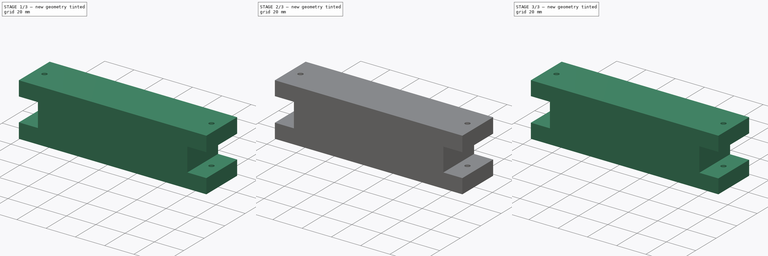
[diagram: build sequence overview — one tinted view per stage of 3, left to right]
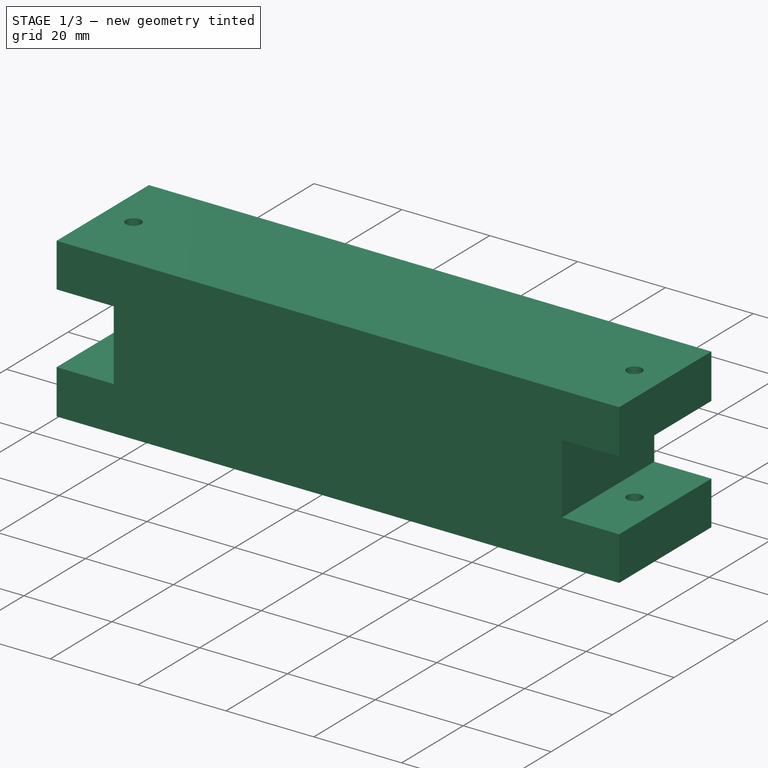
[diagram: stage 1 of 3 — iso view after this stage's code; geometry added in this stage tinted green]
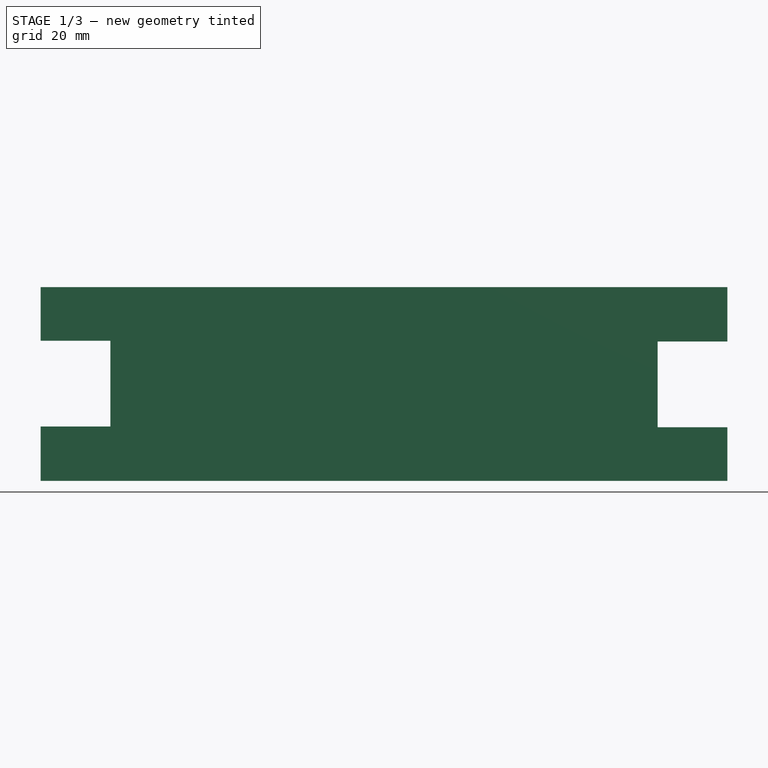
[diagram: stage 1 of 3 — front view after this stage's code; geometry added in this stage tinted green]
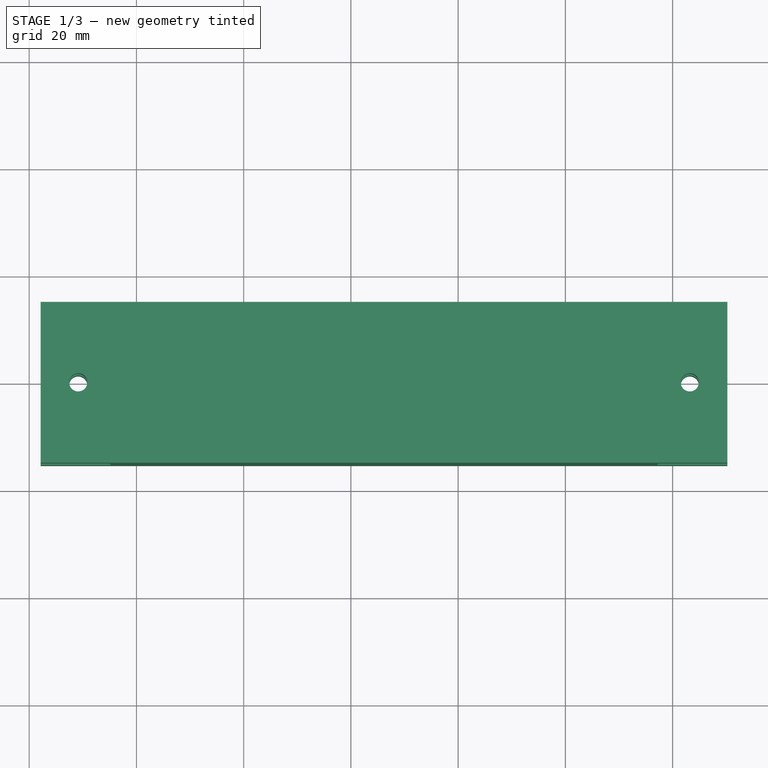
[diagram: stage 1 of 3 — top view after this stage's code; geometry added in this stage tinted green]
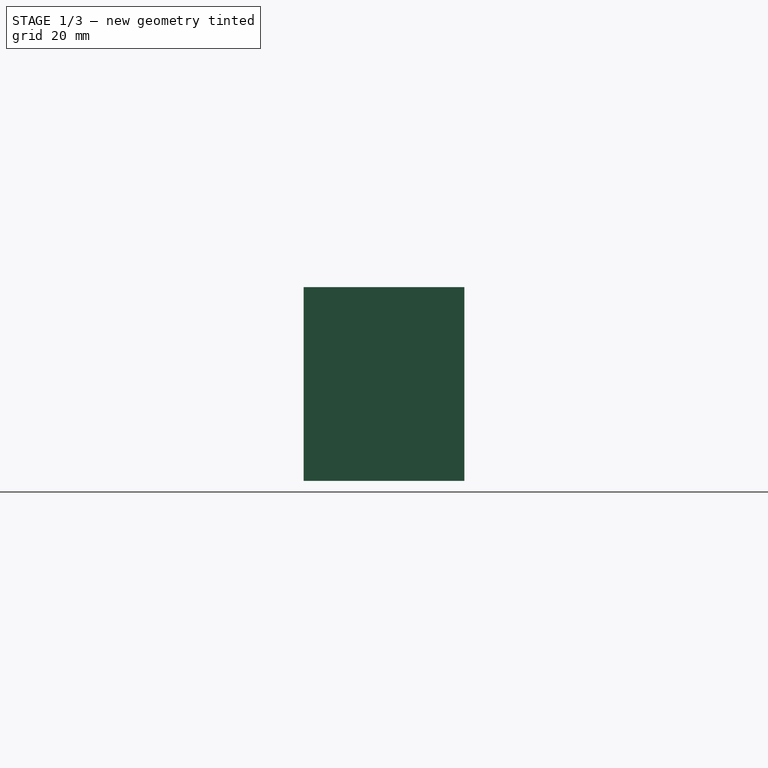
[diagram: stage 1 of 3 — right view after this stage's code; geometry added in this stage tinted green]
FCSTD DOCUMENT  (FreeCAD 0.21R33668 +26 (Git))
Label: Rear_Top_Connector
License: All rights reserved
LicenseURL: http://en.wikipedia.org/wiki/All_rights_reserved
objects: PartDesign::Pocket×6, Sketcher::SketchObject×3, PartDesign::Pad×1, PartDesign::Body×1
note: 18 computed .brp shape members not serialized (recipe doc carries the construction recipe); baked Part::Feature solids carry a one-line shape summary decoded from their .brp

FEATURE [Sketcher::SketchObject] Sketch
  AttachmentOffset = pos=(0,0,-204.7) rot=(0,0,1;0rad)
  FullyConstrained = false
  MapMode = 5
  Placement = pos=(0,204.7,4.55e-14) rot=(1,0,0;1.5708rad)
  Support = -> [XZ_Plane001]
  sketch-geometry (12):
    g0: LineSegment StartX=442.141 StartY=170.606 StartZ=0 EndX=570.2 EndY=170.606 EndZ=0
    g1: LineSegment StartX=570.201 StartY=134.454 StartZ=0 EndX=442.14 EndY=134.454 EndZ=0
    g2: LineSegment StartX=570.2 StartY=170.606 StartZ=0 EndX=570.2 EndY=160.446 EndZ=0
    g3: LineSegment StartX=570.2 StartY=160.446 StartZ=0 EndX=557.195 EndY=160.446 EndZ=0
    g4: LineSegment StartX=557.195 StartY=160.446 StartZ=0 EndX=557.195 EndY=144.454 EndZ=0
    g5: LineSegment StartX=557.195 StartY=144.454 StartZ=0 EndX=570.201 EndY=144.454 EndZ=0
    g6: LineSegment StartX=570.201 StartY=144.454 StartZ=0 EndX=570.201 EndY=134.454 EndZ=0
    g7: LineSegment StartX=442.141 StartY=170.606 StartZ=0 EndX=442.141 EndY=160.6 EndZ=0
    g8: LineSegment StartX=442.141 StartY=160.6 StartZ=0 EndX=455.14 EndY=160.6 EndZ=0
    g9: LineSegment StartX=455.14 StartY=160.6 StartZ=0 EndX=455.14 EndY=144.602 EndZ=0
    g10: LineSegment StartX=455.14 StartY=144.602 StartZ=0 EndX=442.14 EndY=144.602 EndZ=0
    g11: LineSegment StartX=442.14 StartY=144.602 StartZ=0 EndX=442.14 EndY=134.454 EndZ=0
  constraints (24):
    c: Horizontal(g0)
    c: Horizontal(g1)
    c: Coincident(g0,g2)
    c: Vertical(g2)
    c: Coincident(g2,g3)
    c: Horizontal(g3)
    c: Coincident(g3,g4)
    c: Vertical(g4)
    c: Coincident(g4,g5)
    c: Horizontal(g5)
    c: Coincident(g5,g6)
    c: Coincident(g6,g1)
    c: Vertical(g6)
    c: Coincident(g0,g7)
    c: Vertical(g7)
    c: Coincident(g7,g8)
    c: Horizontal(g8)
    c: Coincident(g8,g9)
    c: Vertical(g9)
    c: Coincident(g9,g10)
    c: Horizontal(g10)
    c: Coincident(g10,g11)
    c: Coincident(g11,g1)
    c: Vertical(g11)
FEATURE [PartDesign::Pad] Pad
  Direction = (0,-1,2e-16)
  Length = 30
  Length2 = 10
  Placement = pos=(0,0,0) rot=(1,0,0;1.5708rad)
  Profile = -> Sketch
  ReferenceAxis = -> Sketch [N_Axis]
  Reversed = true
  Type = 0
FEATURE [Sketcher::SketchObject] Sketch001
  AttachmentOffset = pos=(0,0,33) rot=(0,0,1;0rad)
  FullyConstrained = false
  MapMode = 5
  Placement = pos=(0,0,33) rot=(0,0,1;0rad)
  Support = -> [XY_Plane001]
  sketch-geometry (2):
    g0: Circle CenterX=449.144 CenterY=219.698 CenterZ=0 NormalX=0 NormalY=0 NormalZ=1 AngleXU=0 Radius=1.69878
    g1: Circle CenterX=563.197 CenterY=219.697 CenterZ=0 NormalX=0 NormalY=0 NormalZ=1 AngleXU=0 Radius=1.69728
FEATURE [PartDesign::Pocket] Pocket
  BaseFeature = -> Pad
  Direction = (0,0,-1)
  Length = 5
  Length2 = 5
  Placement = pos=(0,0,0) rot=(1,0,0;1.5708rad)
  Profile = -> Sketch001
  ReferenceAxis = -> Sketch001 [N_Axis]
  Reversed = true
  Type = 1
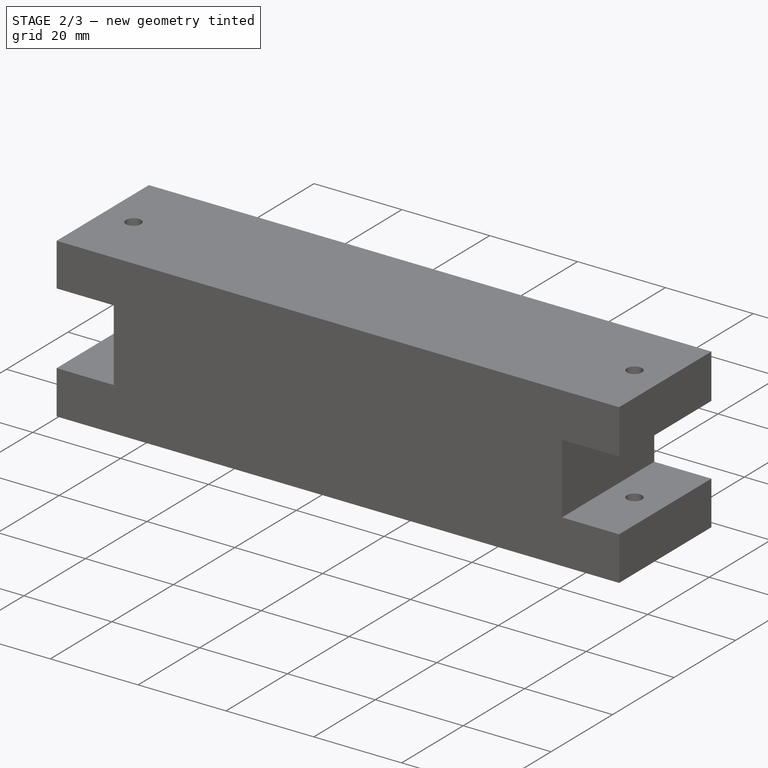
[diagram: stage 2 of 3 — iso view after this stage's code; geometry added in this stage tinted green]
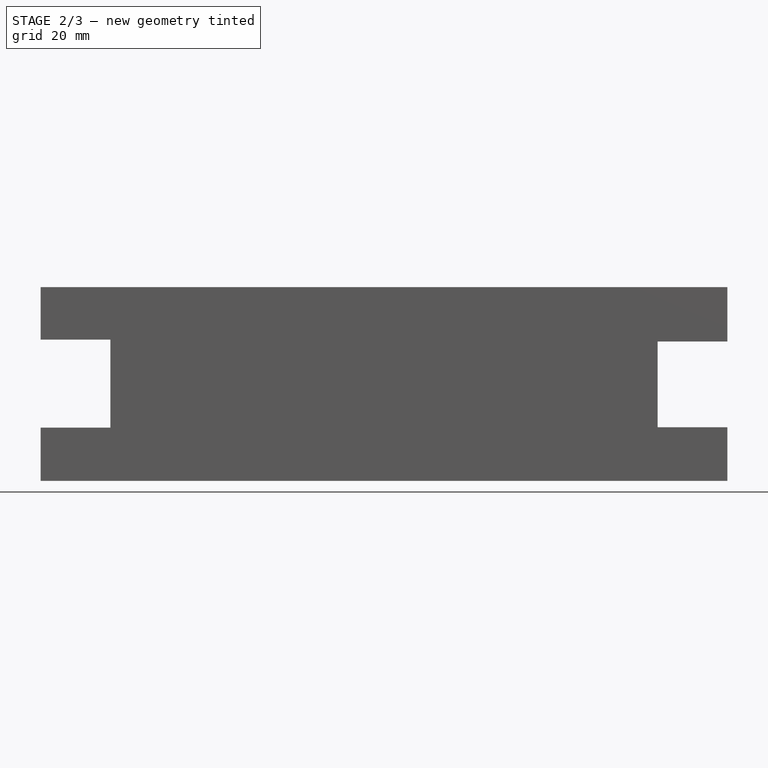
[diagram: stage 2 of 3 — front view after this stage's code; geometry added in this stage tinted green]
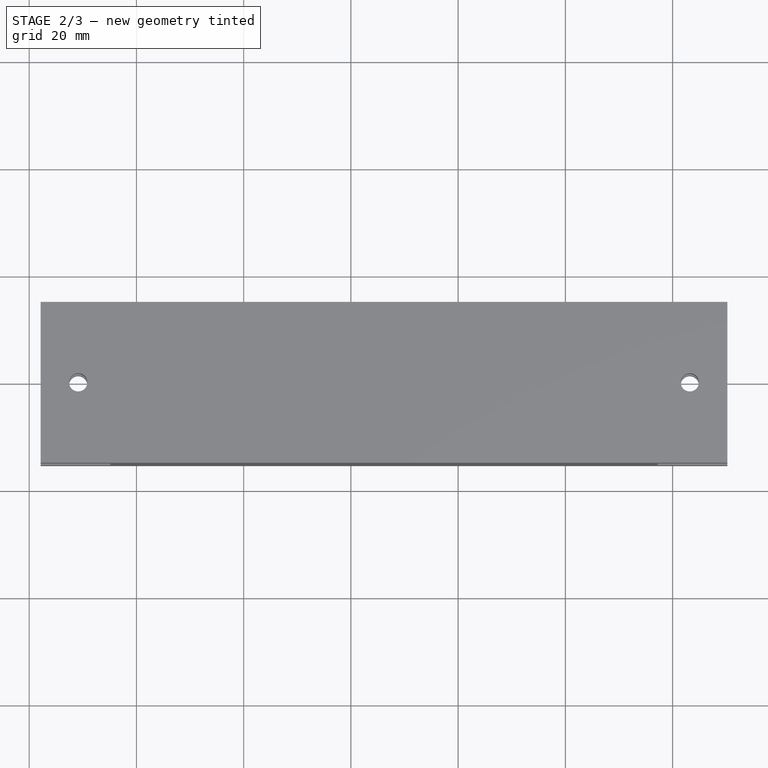
[diagram: stage 2 of 3 — top view after this stage's code; geometry added in this stage tinted green]
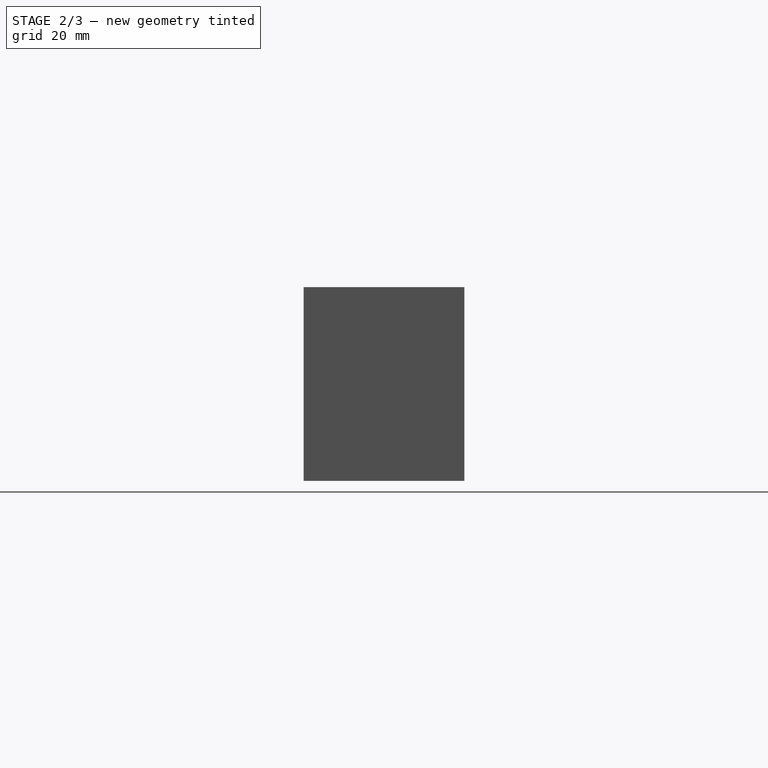
[diagram: stage 2 of 3 — right view after this stage's code; geometry added in this stage tinted green]
FEATURE [Sketcher::SketchObject] Sketch002
  AttachmentOffset = pos=(0,0,134.45) rot=(0,0,1;0rad)
  FullyConstrained = false
  MapMode = 5
  Placement = pos=(0,0,134.45) rot=(0,0,1;0rad)
  Support = -> [XY_Plane001]
  sketch-geometry (12):
    g0: LineSegment StartX=447.459 StartY=222.428 StartZ=0 EndX=445.935 EndY=219.602 EndZ=0
    g1: LineSegment StartX=445.935 StartY=219.602 StartZ=0 EndX=447.621 EndY=216.87 EndZ=0
    g2: LineSegment StartX=447.621 StartY=216.87 StartZ=0 EndX=450.829 EndY=216.964 EndZ=0
    g3: LineSegment StartX=450.829 StartY=216.964 StartZ=0 EndX=452.353 EndY=219.789 EndZ=0
    g4: LineSegment StartX=452.353 StartY=219.789 StartZ=0 EndX=450.667 EndY=222.521 EndZ=0
    g5: LineSegment StartX=450.667 StartY=222.521 StartZ=0 EndX=447.459 EndY=222.428 EndZ=0
    g6: LineSegment StartX=561.343 StartY=222.314 StartZ=0 EndX=560 EndY=219.398 EndZ=0
    g7: LineSegment StartX=560 StartY=219.398 StartZ=0 EndX=561.854 EndY=216.777 EndZ=0
    g8: LineSegment StartX=561.854 StartY=216.777 StartZ=0 EndX=565.05 EndY=217.072 EndZ=0
    g9: LineSegment StartX=565.05 StartY=217.072 StartZ=0 EndX=566.393 EndY=219.988 EndZ=0
    g10: LineSegment StartX=566.393 StartY=219.988 StartZ=0 EndX=564.539 EndY=222.609 EndZ=0
    g11: LineSegment StartX=564.539 StartY=222.609 StartZ=0 EndX=561.343 EndY=222.314 EndZ=0
  constraints (14):
    c: Coincident(g0,g1)
    c: Coincident(g1,g2)
    c: Coincident(g2,g3)
    c: Coincident(g3,g4)
    c: Coincident(g4,g5)
    c: Coincident(g5,g0)
    c: Equal(g0, g1-g5) x5
    c: Coincident(g6,g7)
    c: Coincident(g7,g8)
    c: Coincident(g8,g9)
    c: Coincident(g9,g10)
    c: Coincident(g10,g11)
    c: Coincident(g11,g6)
    c: Equal(g6, g7-g11) x5
FEATURE [PartDesign::Pocket] Pocket001
  BaseFeature = -> Pocket
  Direction = (0,0,-1)
  Length = 3.3
  Length2 = 5
  Placement = pos=(0,0,0) rot=(1,0,0;1.5708rad)
  Profile = -> Sketch002
  ReferenceAxis = -> Sketch002 [N_Axis]
  Reversed = true
  Type = 0
FEATURE [PartDesign::Pocket] Pocket002
  BaseFeature = -> Pocket001
  Direction = (0,7e-16,1)
  Length = 0.2
  Length2 = 5
  Placement = pos=(0,0,0) rot=(1,0,0;1.5708rad)
  Profile = -> Pocket001 [Face8]
  Type = 0
FEATURE [PartDesign::Pocket] Pocket003
  BaseFeature = -> Pocket002
  Direction = (0,-8e-16,-1)
  Length = 0.2
  Length2 = 5
  Placement = pos=(0,0,0) rot=(1,0,0;1.5708rad)
  Profile = -> Pocket002 [Face11]
  Type = 0
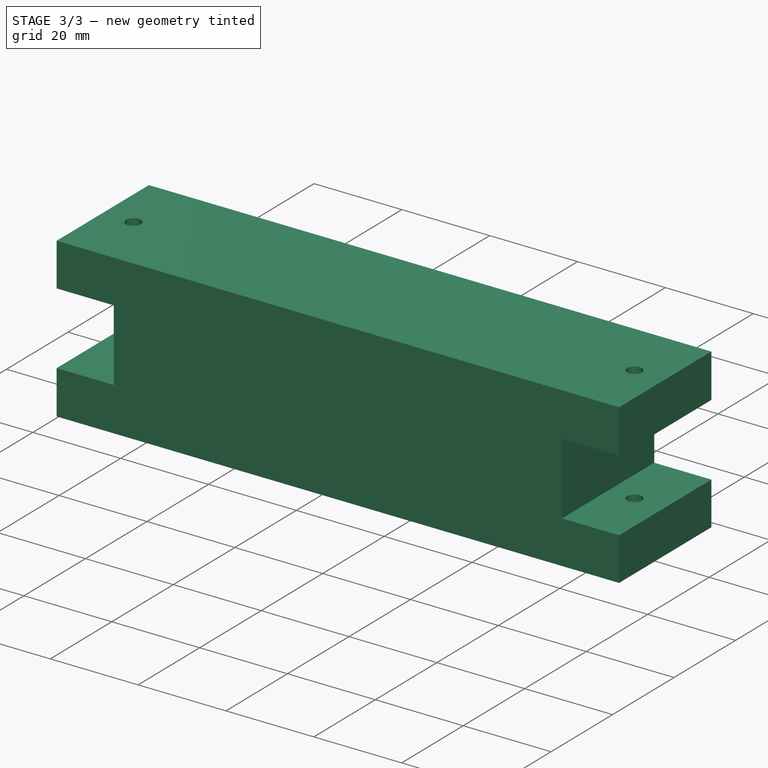
[diagram: stage 3 of 3 — iso view after this stage's code; geometry added in this stage tinted green]
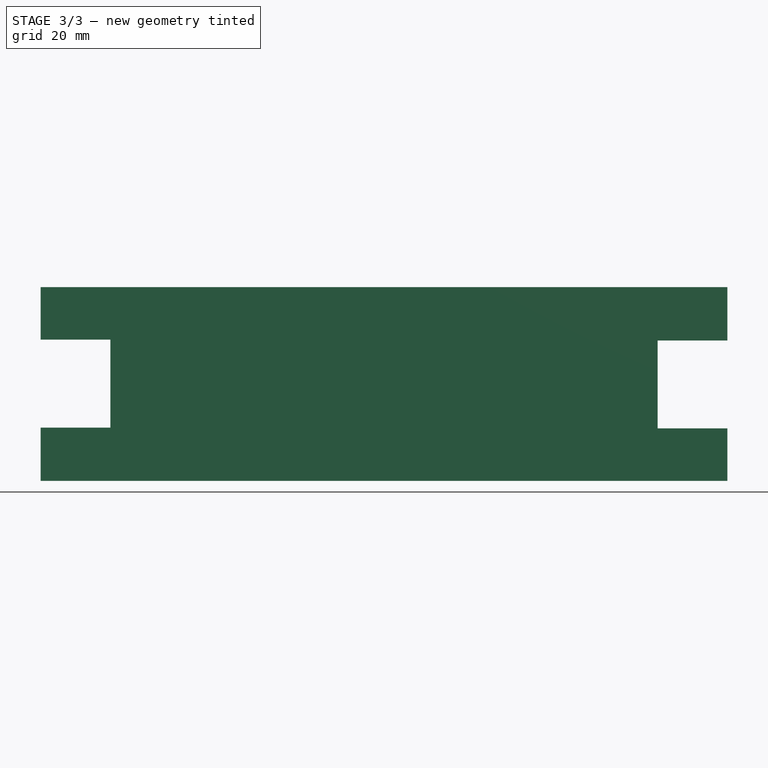
[diagram: stage 3 of 3 — front view after this stage's code; geometry added in this stage tinted green]
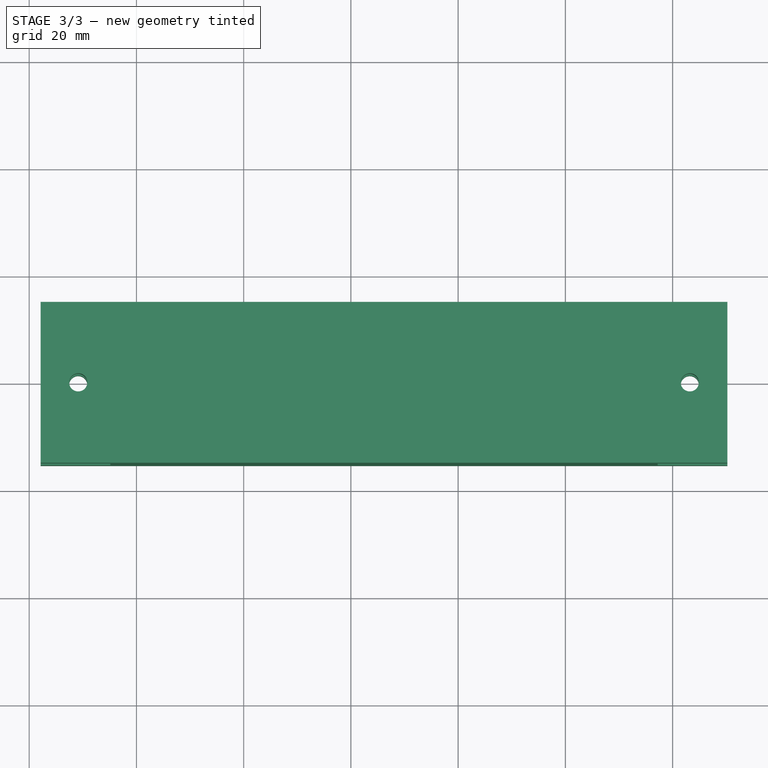
[diagram: stage 3 of 3 — top view after this stage's code; geometry added in this stage tinted green]
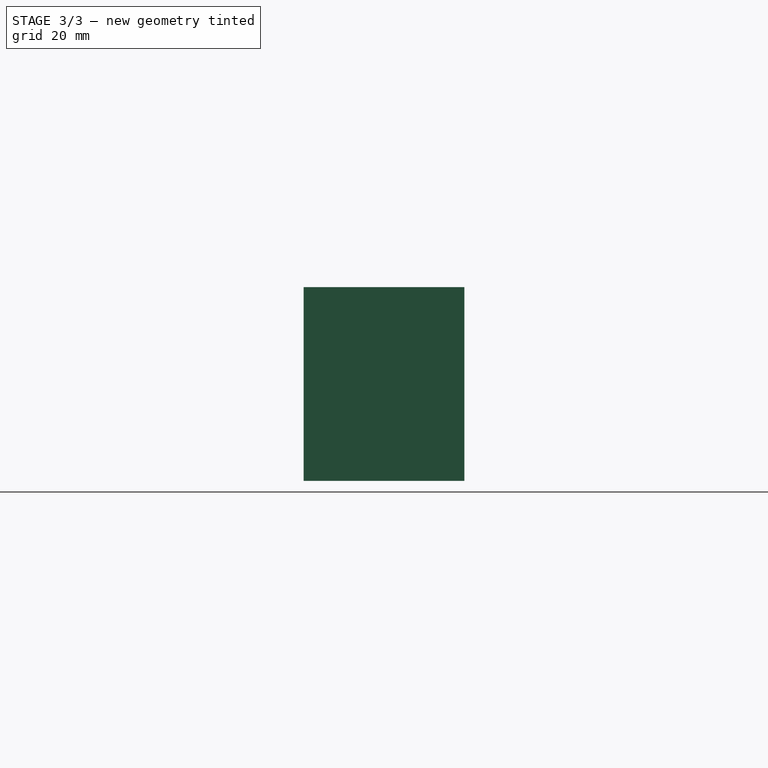
[diagram: stage 3 of 3 — right view after this stage's code; geometry added in this stage tinted green]
FEATURE [PartDesign::Pocket] Pocket004
  BaseFeature = -> Pocket003
  Direction = (0,-9e-16,-1)
  Length = 0.2
  Length2 = 5
  Placement = pos=(0,0,0) rot=(1,0,0;1.5708rad)
  Profile = -> Pocket003 [Face16]
  Type = 0
FEATURE [PartDesign::Pocket] Pocket005
  BaseFeature = -> Pocket004
  Direction = (0,1e-15,1)
  Length = 0.2
  Length2 = 5
  Placement = pos=(0,0,0) rot=(1,0,0;1.5708rad)
  Profile = -> Pocket004 [Face19]
  Type = 0
FEATURE [PartDesign::Body] Body
  Group = -> [Sketch,Pad,Sketch001,Pocket,Sketch002,Pocket001,Pocket002,Pocket003,Pocket004,Pocket005]
  Origin = -> Origin001
  Tip = -> Pocket005
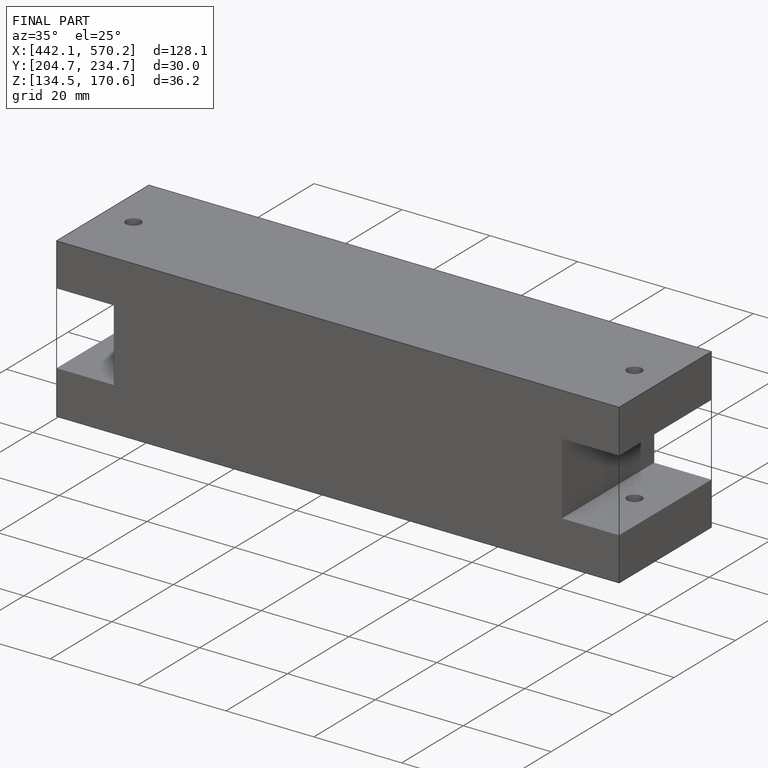
[diagram: finished part — iso view with bounding-box wireframe]
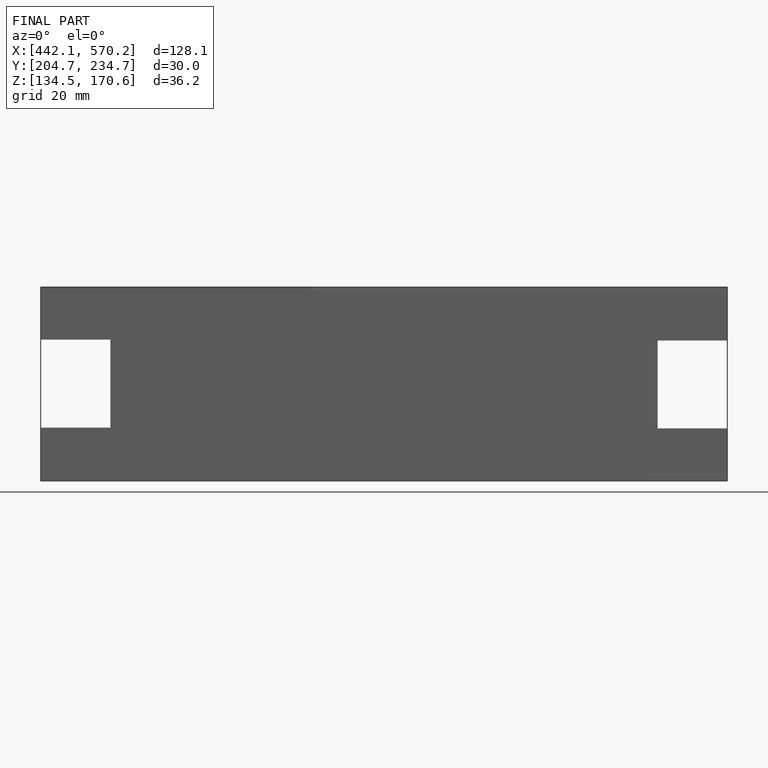
[diagram: finished part — front view with bounding-box wireframe]
